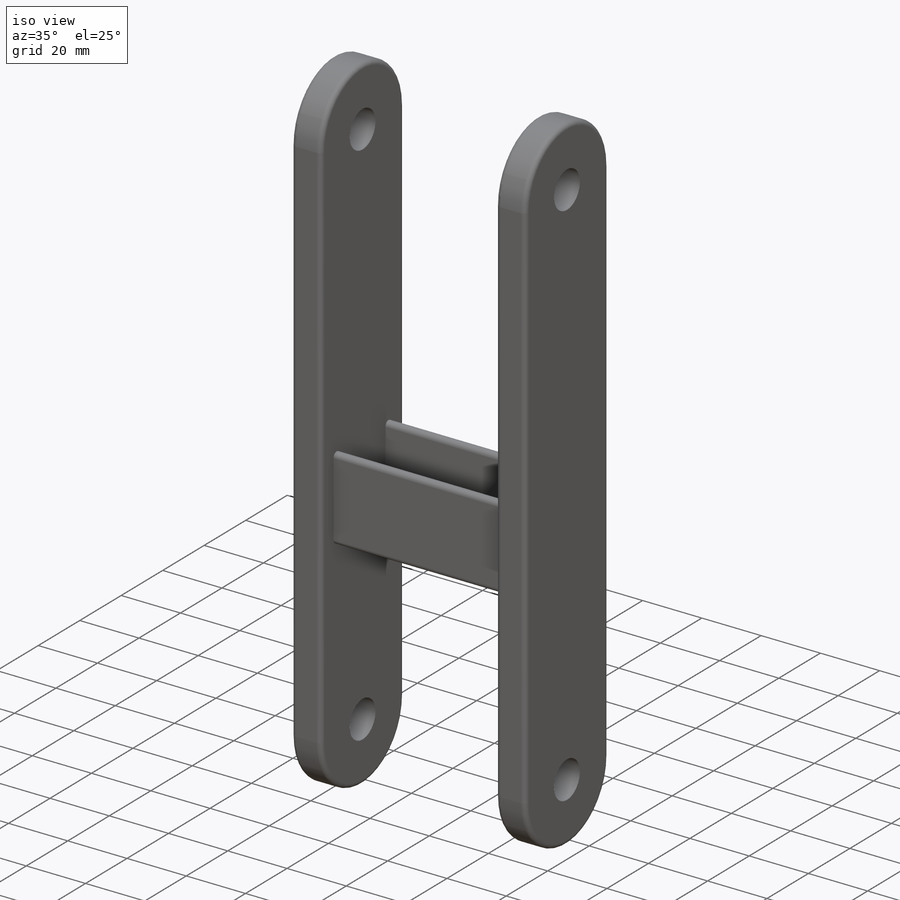
[diagram: iso view]
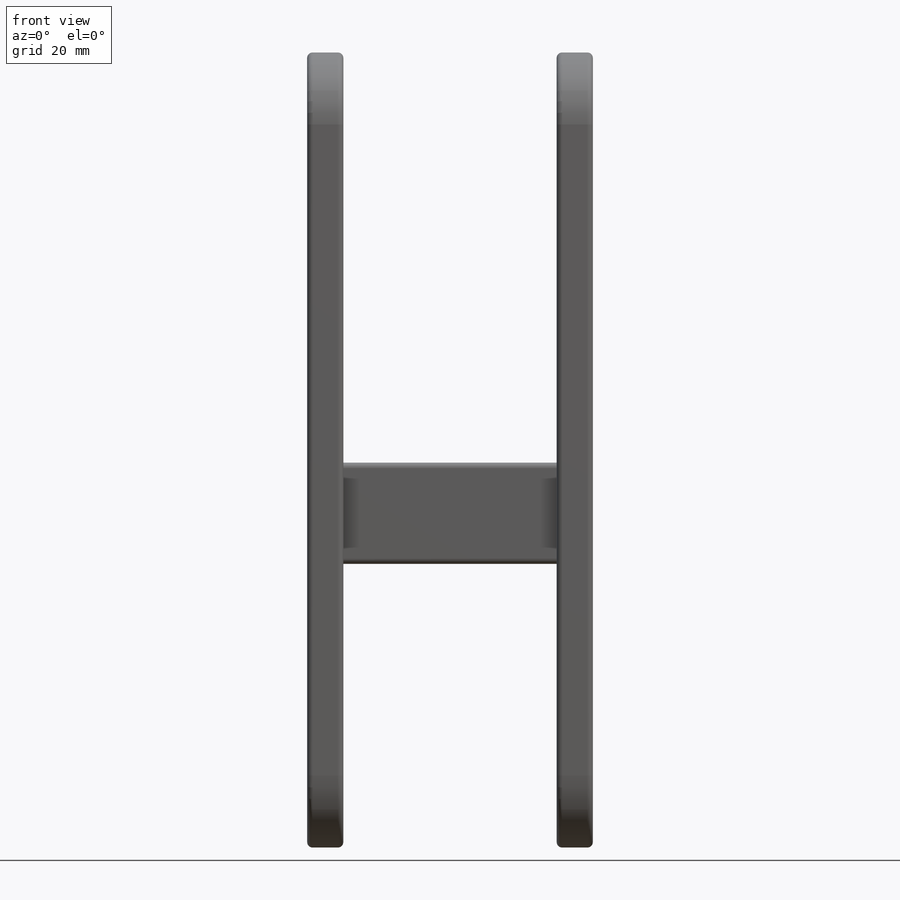
[diagram: front view]
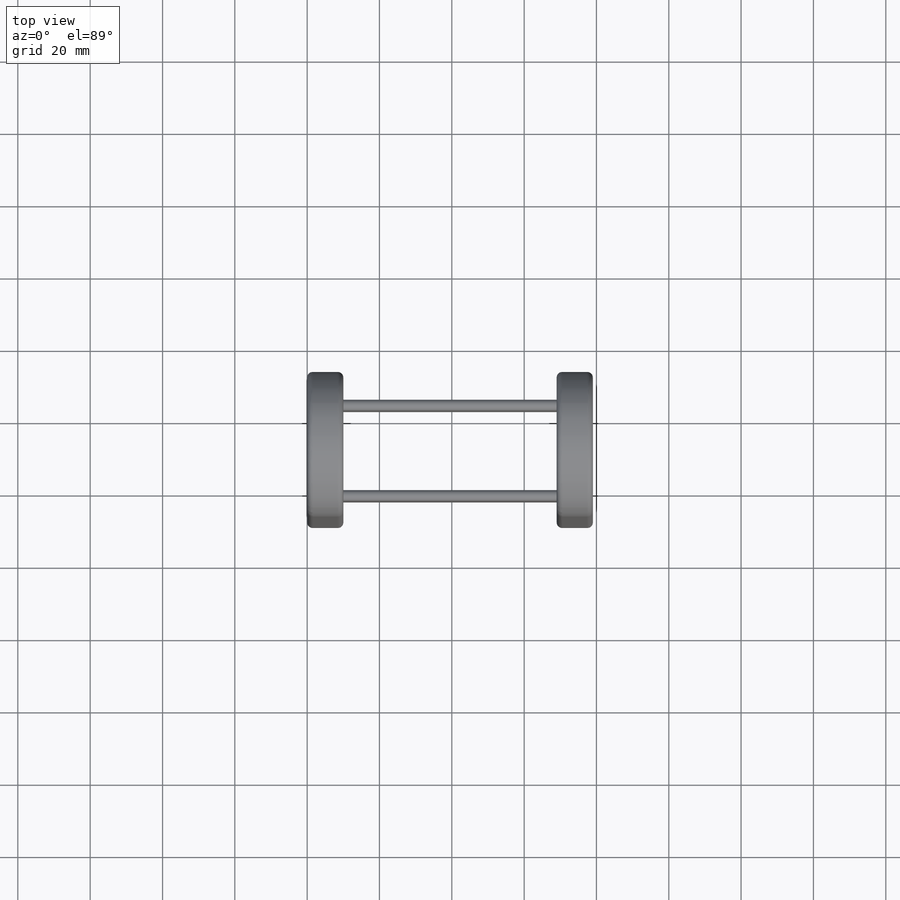
[diagram: top view]
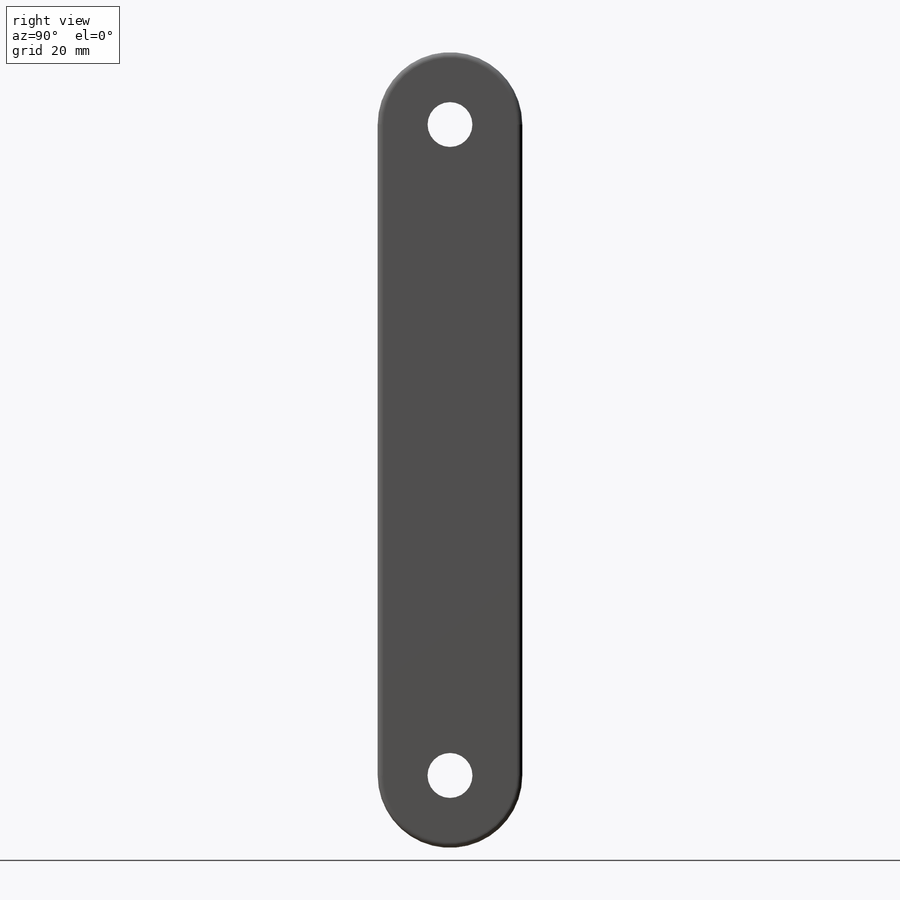
[diagram: right view]
SOLIDWORKS PART (.sldprt)
format: sldprt  version: not decoded by parser v0  size: 250,880 bytes
history: native  units: mm
features: sketch x3, extrude x3, material x1, fillet x1 (+11 scaffold rows collapsed)
feature tree (19):
  scaffold x11  (default folders/planes/origin — collapsed)
  material  "Material <not specified>"
  sketch  "Sketch1"  dims[c1.D1=~7.497679mm c1.D2=~6.879888mm c2.D1=180.0mm c2.D2=20.0mm c2.D3=20.0mm c3.D2=40.0mm]
  extrude  "Boss-Extrude1"  Depth=10mm
  sketch  "Sketch2"  dims[D1=60.0mm D2=60.0mm D3=3.0mm D4=3.0mm D5=3.0mm D6=6.0mm D7=6.0mm]
  extrude  "Boss-Extrude4"  Depth=59mm
  sketch  "Sketch3"
  extrude  "Boss-Extrude5"  Depth=10mm
  fillet  "Fillet3"  Radius=1.5mm
decode coverage: 6 of 7 modeling features carry decoded parameters
note: ~ marks probable driven/reference dimensions
note: suppression state not decoded; provenance and decode notes live in map.json
